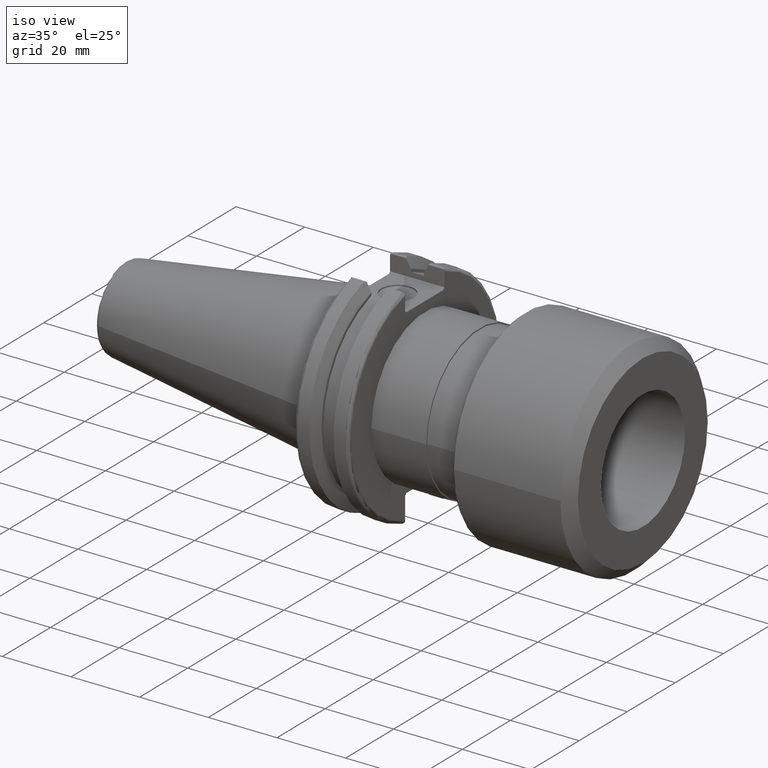
[diagram: clean part render]
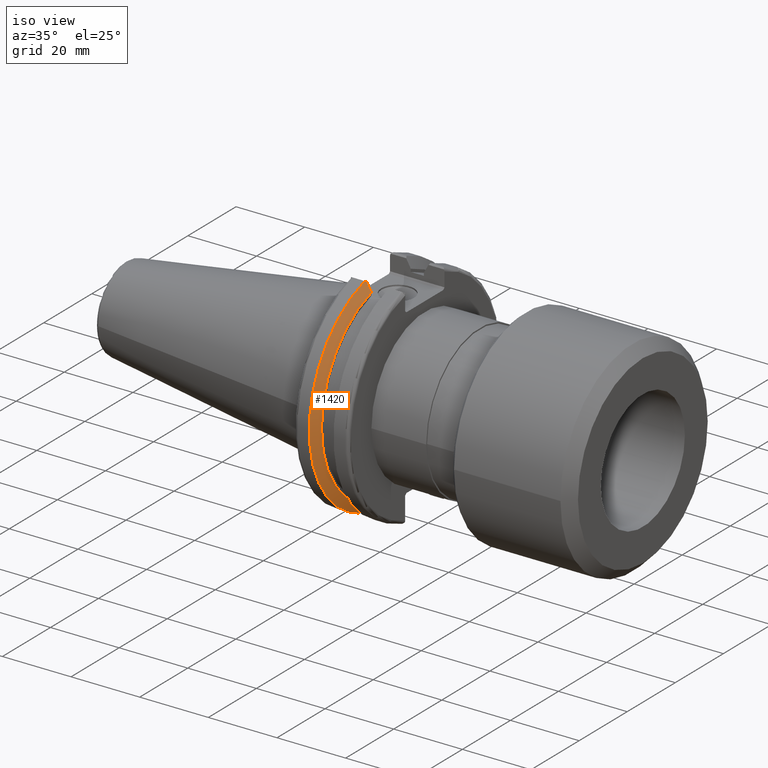
[diagram: same view with one face highlighted and labeled with its STEP entity id]
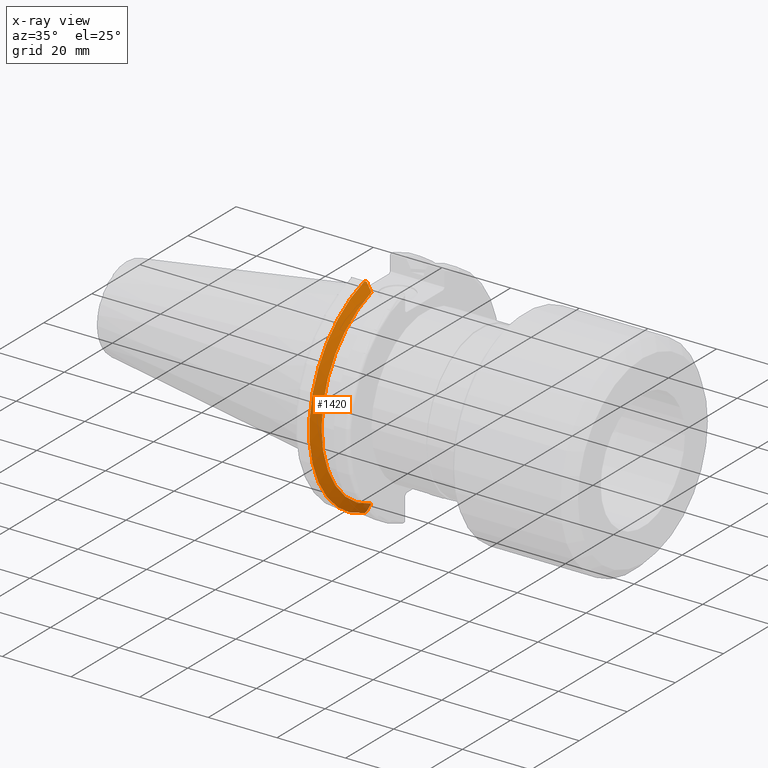
[diagram: x-ray of the same camera — body ghosted, the highlighted face saturated]
A machine part, iso view. The second image highlights one B-rep face of the part: STEP entity #1420.
The next image is the same camera in x-ray: the body ghosted, the highlighted face saturated — about 1% of this face is hidden behind the body in this view.
In plain terms, the highlighted conical surface has half-angle 60 deg.
Its self-contained STEP definition (entity closure, byte-faithful):
#251=(
BOUNDED_CURVE()
B_SPLINE_CURVE(2,(#2345,#2346,#2347),.UNSPECIFIED.,.F.,.F.)
B_SPLINE_CURVE_WITH_KNOTS((3,3),(0.,0.276549142796136),.UNSPECIFIED.)
CURVE()
GEOMETRIC_REPRESENTATION_ITEM()
RATIONAL_B_SPLINE_CURVE((1.,1.00095203903316,1.00031614444813))
REPRESENTATION_ITEM('')
);
#254=(
BOUNDED_CURVE()
B_SPLINE_CURVE(2,(#2373,#2374,#2375),.UNSPECIFIED.,.F.,.F.)
B_SPLINE_CURVE_WITH_KNOTS((3,3),(0.0550586467392022,0.33160778953585),
 .UNSPECIFIED.)
CURVE()
GEOMETRIC_REPRESENTATION_ITEM()
RATIONAL_B_SPLINE_CURVE((1.00031614445148,1.00095203904325,1.))
REPRESENTATION_ITEM('')
);
#255=(
BOUNDED_CURVE()
B_SPLINE_CURVE(2,(#2408,#2409,#2410),.UNSPECIFIED.,.F.,.F.)
B_SPLINE_CURVE_WITH_KNOTS((3,3),(0.,0.0639048713676282),.UNSPECIFIED.)
CURVE()
GEOMETRIC_REPRESENTATION_ITEM()
RATIONAL_B_SPLINE_CURVE((1.,1.00028444218284,1.00047644010574))
REPRESENTATION_ITEM('')
);
#256=(
BOUNDED_CURVE()
B_SPLINE_CURVE(2,(#2416,#2417,#2418),.UNSPECIFIED.,.F.,.F.)
B_SPLINE_CURVE_WITH_KNOTS((3,3),(0.329353533631205,0.393258405001025),
 .UNSPECIFIED.)
CURVE()
GEOMETRIC_REPRESENTATION_ITEM()
RATIONAL_B_SPLINE_CURVE((1.00047644010572,1.00028444218283,1.))
REPRESENTATION_ITEM('')
);
#412=FACE_OUTER_BOUND('',#493,.T.);
#493=EDGE_LOOP('',(#1306,#1307,#1308,#1309,#1310,#1311));
#688=CIRCLE('',#1596,31.75);
#710=CIRCLE('',#1653,28.9593772964944);
#785=VERTEX_POINT('',#2342);
#786=VERTEX_POINT('',#2344);
#795=VERTEX_POINT('',#2370);
#796=VERTEX_POINT('',#2372);
#800=VERTEX_POINT('',#2406);
#801=VERTEX_POINT('',#2412);
#915=EDGE_CURVE('',#786,#785,#251,.T.);
#926=EDGE_CURVE('',#796,#795,#254,.T.);
#934=EDGE_CURVE('',#800,#785,#255,.T.);
#936=EDGE_CURVE('',#800,#801,#688,.T.);
#937=EDGE_CURVE('',#796,#801,#256,.T.);
#990=EDGE_CURVE('',#786,#795,#710,.T.);
#1306=ORIENTED_EDGE('',*,*,#937,.F.);
#1307=ORIENTED_EDGE('',*,*,#926,.T.);
#1308=ORIENTED_EDGE('',*,*,#990,.F.);
#1309=ORIENTED_EDGE('',*,*,#915,.T.);
#1310=ORIENTED_EDGE('',*,*,#934,.F.);
#1311=ORIENTED_EDGE('',*,*,#936,.T.);
#1356=CONICAL_SURFACE('',#1652,30.3546886482472,1.0471975511966);
#1420=ADVANCED_FACE('',(#412),#1356,.T.);
#1596=AXIS2_PLACEMENT_3D('',#2414,#1870,#1871);
#1652=AXIS2_PLACEMENT_3D('',#2561,#2003,#2004);
#1653=AXIS2_PLACEMENT_3D('',#2562,#2005,#2006);
#1870=DIRECTION('center_axis',(1.,0.,0.));
#1871=DIRECTION('ref_axis',(0.,0.,-1.));
#2003=DIRECTION('center_axis',(-1.,0.,0.));
#2004=DIRECTION('ref_axis',(0.,-1.,-1.22464679914735E-16));
#2005=DIRECTION('center_axis',(1.,0.,0.));
#2006=DIRECTION('ref_axis',(0.,0.,-1.));
#2342=CARTESIAN_POINT('',(7.88668530351257,-8.19,30.1755016258903));
#2344=CARTESIAN_POINT('',(9.2191,-8.19,27.7771386827498));
#2345=CARTESIAN_POINT('Ctrl Pts',(9.2191,-8.19,27.7771386827498));
#2346=CARTESIAN_POINT('Ctrl Pts',(8.58046356152393,-8.19,28.9303689539705));
#2347=CARTESIAN_POINT('Ctrl Pts',(7.88668530351257,-8.19,30.1755016258903));
#2370=CARTESIAN_POINT('',(9.2191,-8.19,-27.7771386827498));
#2372=CARTESIAN_POINT('',(7.88668530351256,-8.19,-30.1755016258903));
#2373=CARTESIAN_POINT('Ctrl Pts',(7.88668530351256,-8.19,-30.1755016258903));
#2374=CARTESIAN_POINT('Ctrl Pts',(8.5804635615235,-8.19,-28.9303689539712));
#2375=CARTESIAN_POINT('Ctrl Pts',(9.2191,-8.19,-27.7771386827498));
#2406=CARTESIAN_POINT('',(7.60793323092436,-8.67204822802685,30.5427254764662));
#2408=CARTESIAN_POINT('Ctrl Pts',(7.60793323092436,-8.67204822802686,30.5427254764662));
#2409=CARTESIAN_POINT('Ctrl Pts',(7.74899148121626,-8.42917748262648,30.357706789263));
#2410=CARTESIAN_POINT('Ctrl Pts',(7.88668530351257,-8.19,30.1755016258903));
#2412=CARTESIAN_POINT('',(7.60793323092436,-8.67204822802685,-30.5427254764662));
#2414=CARTESIAN_POINT('Origin',(7.60793323092436,0.,0.));
#2416=CARTESIAN_POINT('Ctrl Pts',(7.88668530351256,-8.19,-30.1755016258903));
#2417=CARTESIAN_POINT('Ctrl Pts',(7.74899148121159,-8.42917748263467,-30.3577067892692));
#2418=CARTESIAN_POINT('Ctrl Pts',(7.60793323092435,-8.67204822802687,-30.5427254764662));
#2561=CARTESIAN_POINT('Origin',(8.41351661546218,0.,0.));
#2562=CARTESIAN_POINT('Origin',(9.2191,0.,0.));